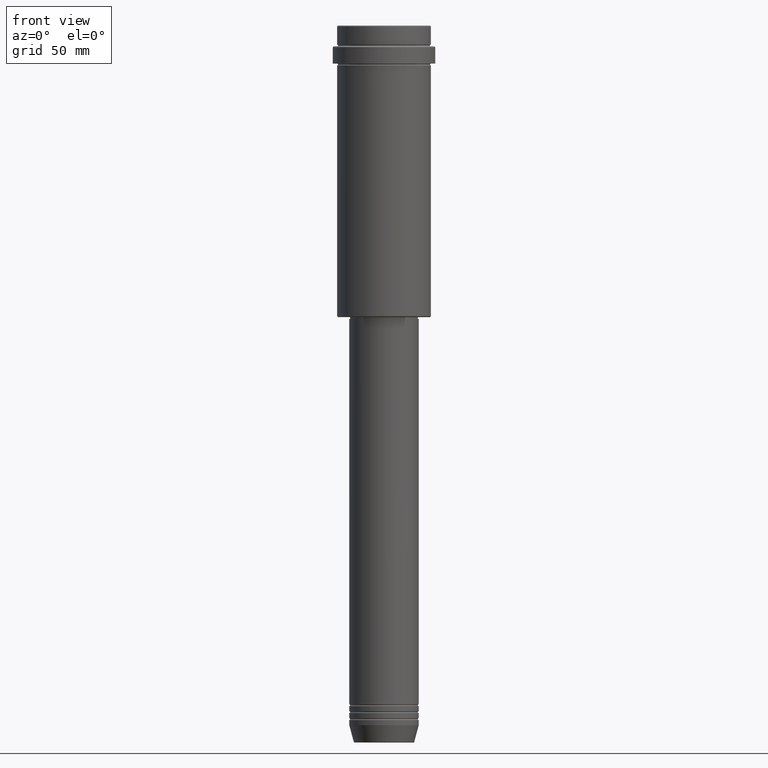
[diagram: clean part render]
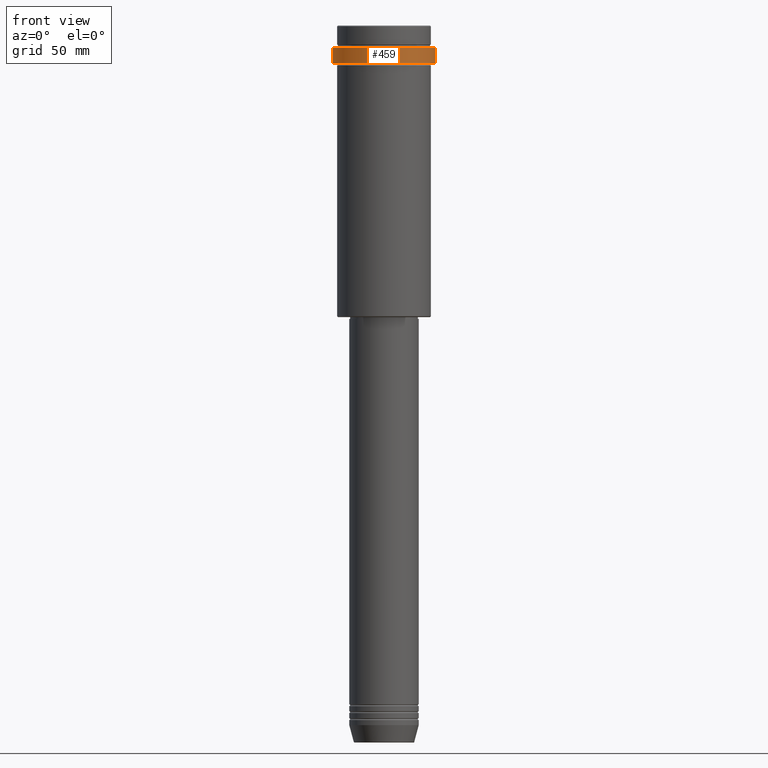
[diagram: same view with one face highlighted and labeled with its STEP entity id]
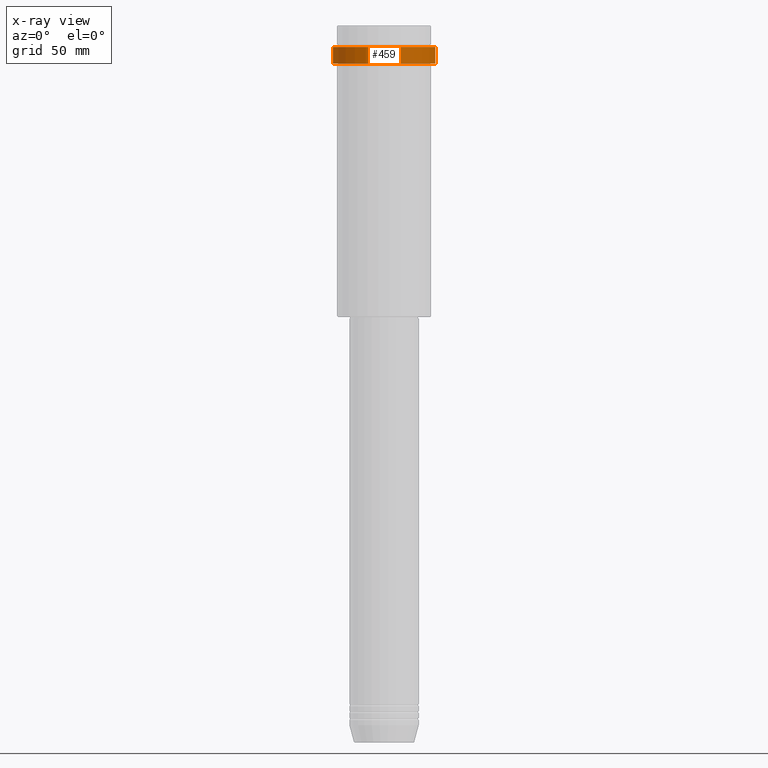
[diagram: x-ray of the same camera — body ghosted, the highlighted face saturated]
A machine part, front view. The second image highlights one B-rep face of the part: STEP entity #459.
The next image is the same camera in x-ray: the body ghosted, the highlighted face saturated — about 0% of this face is hidden behind the body in this view.
In plain terms, the highlighted cylindrical surface (partial cylindrical patch) has radius 29.5 mm, axis along (-0, -0, 1).
Its self-contained STEP definition (entity closure, byte-faithful):
#69 = DIRECTION ( 'NONE',  ( -0.000000000000000000, -0.000000000000000000, 1.000000000000000000 ) ) ;
#74 = CARTESIAN_POINT ( 'NONE',  ( 29.50000000000000000, 0.000000000000000000, 0.000000000000000000 ) ) ;
#87 = DIRECTION ( 'NONE',  ( -0.000000000000000000, -0.000000000000000000, 1.000000000000000000 ) ) ;
#131 = CARTESIAN_POINT ( 'NONE',  ( -29.50000000000000000, 3.612708057484691604E-15, -12.50000000000006040 ) ) ;
#135 = VERTEX_POINT ( 'NONE', #224 ) ;
#170 = EDGE_LOOP ( 'NONE', ( #589, #697, #630, #929 ) ) ;
#173 = VECTOR ( 'NONE', #69, 1000.000000000000000 ) ;
#192 = VERTEX_POINT ( 'NONE', #807 ) ;
#222 = VERTEX_POINT ( 'NONE', #552 ) ;
#224 = CARTESIAN_POINT ( 'NONE',  ( 29.50000000000000000, 0.000000000000000000, -12.50000000000006040 ) ) ;
#239 = VECTOR ( 'NONE', #968, 1000.000000000000000 ) ;
#304 = DIRECTION ( 'NONE',  ( -0.000000000000000000, -0.000000000000000000, 1.000000000000000000 ) ) ;
#314 = CARTESIAN_POINT ( 'NONE',  ( 0.000000000000000000, 0.000000000000000000, 0.000000000000000000 ) ) ;
#345 = EDGE_CURVE ( 'NONE', #222, #192, #769, .T. ) ;
#376 = AXIS2_PLACEMENT_3D ( 'NONE', #485, #304, #510 ) ;
#384 = CIRCLE ( 'NONE', #1218, 29.50000000000000000 ) ;
#415 = CARTESIAN_POINT ( 'NONE',  ( -29.50000000000000000, 3.612708057484691604E-15, 0.000000000000000000 ) ) ;
#431 = LINE ( 'NONE', #74, #173 ) ;
#459 = ADVANCED_FACE ( 'NONE', ( #1396 ), #624, .T. ) ;
#485 = CARTESIAN_POINT ( 'NONE',  ( 0.000000000000000000, 0.000000000000000000, -22.00000000000000711 ) ) ;
#510 = DIRECTION ( 'NONE',  ( 1.000000000000000000, 0.000000000000000000, 0.000000000000000000 ) ) ;
#552 = CARTESIAN_POINT ( 'NONE',  ( -29.49999999999999645, 3.612708057484690815E-15, -22.00000000000000711 ) ) ;
#589 = ORIENTED_EDGE ( 'NONE', *, *, #978, .F. ) ;
#621 = DIRECTION ( 'NONE',  ( 1.000000000000000000, 0.000000000000000000, 0.000000000000000000 ) ) ;
#624 = CYLINDRICAL_SURFACE ( 'NONE', #1324, 29.50000000000000000 ) ;
#626 = CARTESIAN_POINT ( 'NONE',  ( 0.000000000000000000, 0.000000000000000000, -12.50000000000006040 ) ) ;
#630 = ORIENTED_EDGE ( 'NONE', *, *, #1197, .T. ) ;
#683 = VERTEX_POINT ( 'NONE', #131 ) ;
#697 = ORIENTED_EDGE ( 'NONE', *, *, #345, .T. ) ;
#769 = CIRCLE ( 'NONE', #376, 29.49999999999999645 ) ;
#807 = CARTESIAN_POINT ( 'NONE',  ( 29.49999999999999645, 0.000000000000000000, -22.00000000000000711 ) ) ;
#858 = DIRECTION ( 'NONE',  ( 0.000000000000000000, 0.000000000000000000, -1.000000000000000000 ) ) ;
#876 = DIRECTION ( 'NONE',  ( 1.000000000000000000, 0.000000000000000000, 0.000000000000000000 ) ) ;
#929 = ORIENTED_EDGE ( 'NONE', *, *, #1409, .T. ) ;
#968 = DIRECTION ( 'NONE',  ( -0.000000000000000000, -0.000000000000000000, 1.000000000000000000 ) ) ;
#978 = EDGE_CURVE ( 'NONE', #222, #683, #1083, .T. ) ;
#1083 = LINE ( 'NONE', #415, #239 ) ;
#1197 = EDGE_CURVE ( 'NONE', #192, #135, #431, .T. ) ;
#1218 = AXIS2_PLACEMENT_3D ( 'NONE', #626, #858, #621 ) ;
#1324 = AXIS2_PLACEMENT_3D ( 'NONE', #314, #87, #876 ) ;
#1396 = FACE_OUTER_BOUND ( 'NONE', #170, .T. ) ;
#1409 = EDGE_CURVE ( 'NONE', #135, #683, #384, .T. ) ;